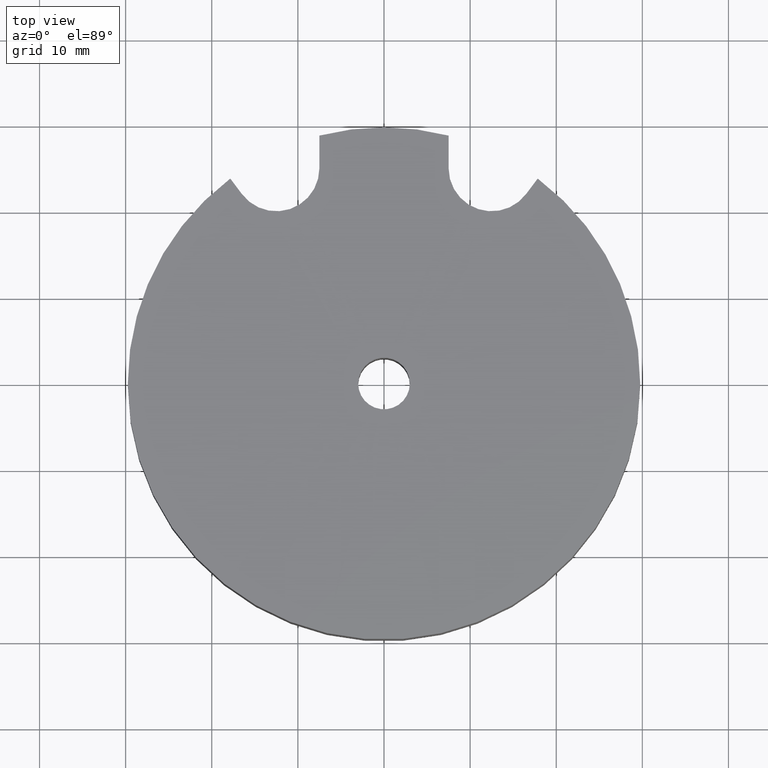
[diagram: clean part render]
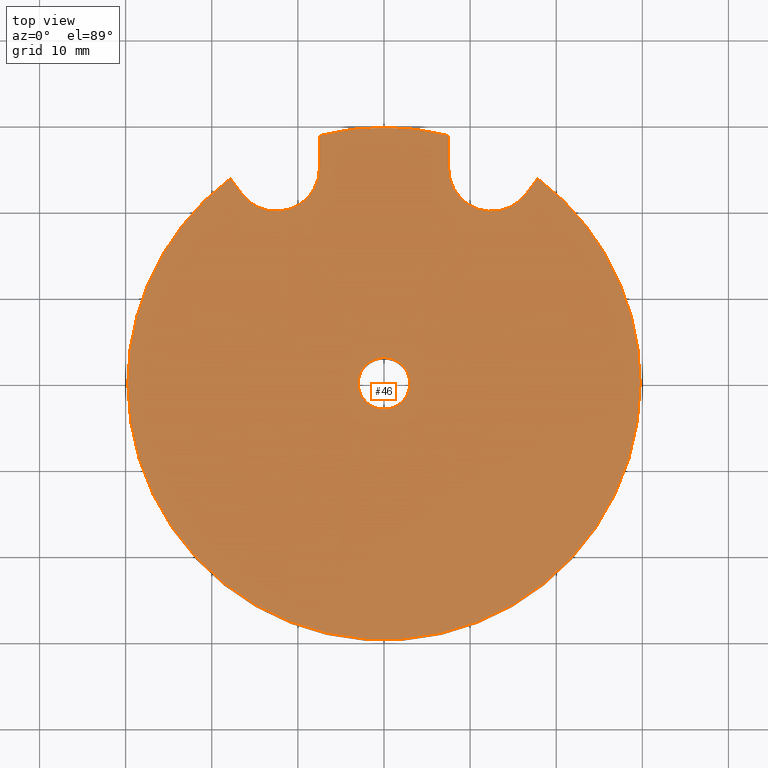
[diagram: same view with one face highlighted and labeled with its STEP entity id]
A machine part, top view. The second image highlights one B-rep face of the part: STEP entity #46.
In plain terms, the highlighted planar face has unit normal (0, 0, 1).
Its self-contained STEP definition (entity closure, byte-faithful):
#3 = CARTESIAN_POINT ( 'NONE',  ( 0.0000000000000000000, 0.0000000000000000000, 6.000000000000000000 ) ) ;
#10 = DIRECTION ( 'NONE',  ( 0.0000000000000000000, 0.0000000000000000000, 1.000000000000000000 ) ) ;
#19 = PLANE ( 'NONE',  #361 ) ;
#21 = CARTESIAN_POINT ( 'NONE',  ( 16.50000000000000000, 22.00000000000000700, 6.000000000000000000 ) ) ;
#29 = EDGE_CURVE ( 'NONE', #485, #287, #231, .T. ) ;
#30 = DIRECTION ( 'NONE',  ( 1.000000000000000000, 0.0000000000000000000, 0.0000000000000000000 ) ) ;
#35 = CARTESIAN_POINT ( 'NONE',  ( -3.000000000000000400, 0.0000000000000000000, 6.000000000000000000 ) ) ;
#41 = DIRECTION ( 'NONE',  ( 1.000000000000000000, 0.0000000000000000000, 0.0000000000000000000 ) ) ;
#46 = ADVANCED_FACE ( 'NONE', ( #102, #230 ), #19, .T. ) ;
#49 = DIRECTION ( 'NONE',  ( 0.0000000000000000000, 0.0000000000000000000, 1.000000000000000000 ) ) ;
#50 = CARTESIAN_POINT ( 'NONE',  ( -7.500000000000000000, 25.00000000000000000, 6.000000000000000000 ) ) ;
#51 = CARTESIAN_POINT ( 'NONE',  ( 0.0000000000000000000, 0.0000000000000000000, 6.000000000000000000 ) ) ;
#52 = DIRECTION ( 'NONE',  ( 1.000000000000000000, 0.0000000000000000000, 0.0000000000000000000 ) ) ;
#56 = CARTESIAN_POINT ( 'NONE',  ( -17.84999999999999800, 23.80000000000000400, 6.000000000000000000 ) ) ;
#60 = DIRECTION ( 'NONE',  ( 0.0000000000000000000, 0.0000000000000000000, 1.000000000000000000 ) ) ;
#63 = DIRECTION ( 'NONE',  ( 0.0000000000000000000, 0.0000000000000000000, 1.000000000000000000 ) ) ;
#64 = CARTESIAN_POINT ( 'NONE',  ( -17.84999999999999800, 23.80000000000000400, 6.000000000000000000 ) ) ;
#65 = CARTESIAN_POINT ( 'NONE',  ( 0.0000000000000000000, 0.0000000000000000000, 6.000000000000000000 ) ) ;
#70 = CARTESIAN_POINT ( 'NONE',  ( -16.49999999999999600, 22.00000000000000700, 6.000000000000000000 ) ) ;
#76 = VECTOR ( 'NONE', #333, 1000.000000000000000 ) ;
#81 = LINE ( 'NONE', #56, #76 ) ;
#83 = VECTOR ( 'NONE', #338, 1000.000000000000000 ) ;
#85 = VECTOR ( 'NONE', #285, 1000.000000000000000 ) ;
#87 = DIRECTION ( 'NONE',  ( 1.000000000000000000, 0.0000000000000000000, 0.0000000000000000000 ) ) ;
#88 = LINE ( 'NONE', #454, #85 ) ;
#90 = LINE ( 'NONE', #50, #83 ) ;
#93 = CIRCLE ( 'NONE', #217, 29.74999999999999600 ) ;
#96 = CIRCLE ( 'NONE', #194, 4.999999999999997300 ) ;
#98 = VECTOR ( 'NONE', #383, 1000.000000000000000 ) ;
#100 = LINE ( 'NONE', #281, #98 ) ;
#102 = FACE_OUTER_BOUND ( 'NONE', #165, .T. ) ;
#107 = CARTESIAN_POINT ( 'NONE',  ( 0.0000000000000000000, 0.0000000000000000000, 6.000000000000000000 ) ) ;
#114 = ORIENTED_EDGE ( 'NONE', *, *, #460, .T. ) ;
#116 = CIRCLE ( 'NONE', #225, 29.75000000000000400 ) ;
#121 = CIRCLE ( 'NONE', #213, 4.999999999999997300 ) ;
#134 = CIRCLE ( 'NONE', #243, 29.75000000000000400 ) ;
#135 = ORIENTED_EDGE ( 'NONE', *, *, #468, .T. ) ;
#140 = ORIENTED_EDGE ( 'NONE', *, *, #407, .F. ) ;
#142 = VERTEX_POINT ( 'NONE', #70 ) ;
#143 = CARTESIAN_POINT ( 'NONE',  ( 12.50000000000000000, 25.00000000000000000, 6.000000000000000000 ) ) ;
#146 = CARTESIAN_POINT ( 'NONE',  ( -12.50000000000000000, 25.00000000000000000, 6.000000000000000000 ) ) ;
#150 = DIRECTION ( 'NONE',  ( 0.0000000000000000000, 0.0000000000000000000, 1.000000000000000000 ) ) ;
#154 = DIRECTION ( 'NONE',  ( 1.000000000000000000, 0.0000000000000000000, 0.0000000000000000000 ) ) ;
#155 = CIRCLE ( 'NONE', #245, 29.75000000000000400 ) ;
#163 = CIRCLE ( 'NONE', #292, 3.000000000000000400 ) ;
#165 = EDGE_LOOP ( 'NONE', ( #114, #252, #289, #335, #316, #408, #135, #317, #309, #283 ) ) ;
#166 = CARTESIAN_POINT ( 'NONE',  ( 3.000000000000000400, 3.673940397442060400E-016, 6.000000000000000000 ) ) ;
#190 = DIRECTION ( 'NONE',  ( -0.0000000000000000000, -0.0000000000000000000, -1.000000000000000000 ) ) ;
#191 = CARTESIAN_POINT ( 'NONE',  ( 0.0000000000000000000, 0.0000000000000000000, 6.000000000000000000 ) ) ;
#194 = AXIS2_PLACEMENT_3D ( 'NONE', #146, #190, #52 ) ;
#199 = CARTESIAN_POINT ( 'NONE',  ( 7.500000000000000000, 25.00000000000000000, 6.000000000000000000 ) ) ;
#205 = DIRECTION ( 'NONE',  ( 0.0000000000000000000, 0.0000000000000000000, 1.000000000000000000 ) ) ;
#211 = CARTESIAN_POINT ( 'NONE',  ( -7.500000000000000000, 28.78910384155782900, 6.000000000000000000 ) ) ;
#213 = AXIS2_PLACEMENT_3D ( 'NONE', #143, #236, #472 ) ;
#217 = AXIS2_PLACEMENT_3D ( 'NONE', #3, #205, #30 ) ;
#225 = AXIS2_PLACEMENT_3D ( 'NONE', #403, #150, #87 ) ;
#230 = FACE_BOUND ( 'NONE', #416, .T. ) ;
#231 = CIRCLE ( 'NONE', #363, 3.000000000000000400 ) ;
#236 = DIRECTION ( 'NONE',  ( -0.0000000000000000000, -0.0000000000000000000, -1.000000000000000000 ) ) ;
#239 = CARTESIAN_POINT ( 'NONE',  ( 17.84999999999999800, 23.80000000000000400, 6.000000000000000000 ) ) ;
#242 = DIRECTION ( 'NONE',  ( 1.000000000000000000, 0.0000000000000000000, 0.0000000000000000000 ) ) ;
#243 = AXIS2_PLACEMENT_3D ( 'NONE', #336, #49, #242 ) ;
#245 = AXIS2_PLACEMENT_3D ( 'NONE', #191, #60, #449 ) ;
#252 = ORIENTED_EDGE ( 'NONE', *, *, #430, .T. ) ;
#275 = VERTEX_POINT ( 'NONE', #239 ) ;
#281 = CARTESIAN_POINT ( 'NONE',  ( 17.84999999999999800, 23.80000000000000400, 6.000000000000000000 ) ) ;
#283 = ORIENTED_EDGE ( 'NONE', *, *, #477, .T. ) ;
#285 = DIRECTION ( 'NONE',  ( 0.0000000000000000000, 1.000000000000000000, 0.0000000000000000000 ) ) ;
#286 = CARTESIAN_POINT ( 'NONE',  ( -29.75000000000000400, 0.0000000000000000000, 6.000000000000000000 ) ) ;
#287 = VERTEX_POINT ( 'NONE', #35 ) ;
#289 = ORIENTED_EDGE ( 'NONE', *, *, #418, .T. ) ;
#292 = AXIS2_PLACEMENT_3D ( 'NONE', #51, #385, #154 ) ;
#293 = VERTEX_POINT ( 'NONE', #21 ) ;
#301 = VERTEX_POINT ( 'NONE', #286 ) ;
#304 = CARTESIAN_POINT ( 'NONE',  ( -7.500000000000003600, 25.00000000000000000, 6.000000000000000000 ) ) ;
#308 = VERTEX_POINT ( 'NONE', #304 ) ;
#309 = ORIENTED_EDGE ( 'NONE', *, *, #475, .T. ) ;
#316 = ORIENTED_EDGE ( 'NONE', *, *, #464, .T. ) ;
#317 = ORIENTED_EDGE ( 'NONE', *, *, #470, .T. ) ;
#329 = VERTEX_POINT ( 'NONE', #211 ) ;
#333 = DIRECTION ( 'NONE',  ( -0.6000000000000002000, 0.7999999999999998200, -0.0000000000000000000 ) ) ;
#335 = ORIENTED_EDGE ( 'NONE', *, *, #462, .T. ) ;
#336 = CARTESIAN_POINT ( 'NONE',  ( 0.0000000000000000000, 0.0000000000000000000, 6.000000000000000000 ) ) ;
#338 = DIRECTION ( 'NONE',  ( -0.0000000000000000000, -1.000000000000000000, -0.0000000000000000000 ) ) ;
#347 = VERTEX_POINT ( 'NONE', #199 ) ;
#353 = VERTEX_POINT ( 'NONE', #391 ) ;
#361 = AXIS2_PLACEMENT_3D ( 'NONE', #65, #63, #411 ) ;
#363 = AXIS2_PLACEMENT_3D ( 'NONE', #107, #10, #41 ) ;
#366 = ORIENTED_EDGE ( 'NONE', *, *, #29, .F. ) ;
#383 = DIRECTION ( 'NONE',  ( -0.6000000000000002000, -0.7999999999999998200, 0.0000000000000000000 ) ) ;
#385 = DIRECTION ( 'NONE',  ( 0.0000000000000000000, 0.0000000000000000000, 1.000000000000000000 ) ) ;
#391 = CARTESIAN_POINT ( 'NONE',  ( 29.75000000000000400, 3.643324227463376200E-015, 6.000000000000000000 ) ) ;
#403 = CARTESIAN_POINT ( 'NONE',  ( 0.0000000000000000000, 0.0000000000000000000, 6.000000000000000000 ) ) ;
#407 = EDGE_CURVE ( 'NONE', #287, #485, #163, .T. ) ;
#408 = ORIENTED_EDGE ( 'NONE', *, *, #466, .T. ) ;
#411 = DIRECTION ( 'NONE',  ( 1.000000000000000000, 0.0000000000000000000, -0.0000000000000000000 ) ) ;
#416 = EDGE_LOOP ( 'NONE', ( #140, #366 ) ) ;
#418 = EDGE_CURVE ( 'NONE', #353, #275, #155, .T. ) ;
#425 = VERTEX_POINT ( 'NONE', #64 ) ;
#430 = EDGE_CURVE ( 'NONE', #301, #353, #134, .T. ) ;
#435 = VERTEX_POINT ( 'NONE', #439 ) ;
#439 = CARTESIAN_POINT ( 'NONE',  ( 7.500000000000000900, 28.78910384155782900, 6.000000000000000000 ) ) ;
#449 = DIRECTION ( 'NONE',  ( 1.000000000000000000, 0.0000000000000000000, 0.0000000000000000000 ) ) ;
#454 = CARTESIAN_POINT ( 'NONE',  ( 7.500000000000000000, 25.00000000000000000, 6.000000000000000000 ) ) ;
#460 = EDGE_CURVE ( 'NONE', #425, #301, #116, .T. ) ;
#462 = EDGE_CURVE ( 'NONE', #275, #293, #100, .T. ) ;
#464 = EDGE_CURVE ( 'NONE', #293, #347, #121, .T. ) ;
#466 = EDGE_CURVE ( 'NONE', #347, #435, #88, .T. ) ;
#468 = EDGE_CURVE ( 'NONE', #435, #329, #93, .T. ) ;
#470 = EDGE_CURVE ( 'NONE', #329, #308, #90, .T. ) ;
#472 = DIRECTION ( 'NONE',  ( -1.000000000000000000, 0.0000000000000000000, 0.0000000000000000000 ) ) ;
#475 = EDGE_CURVE ( 'NONE', #308, #142, #96, .T. ) ;
#477 = EDGE_CURVE ( 'NONE', #142, #425, #81, .T. ) ;
#485 = VERTEX_POINT ( 'NONE', #166 ) ;